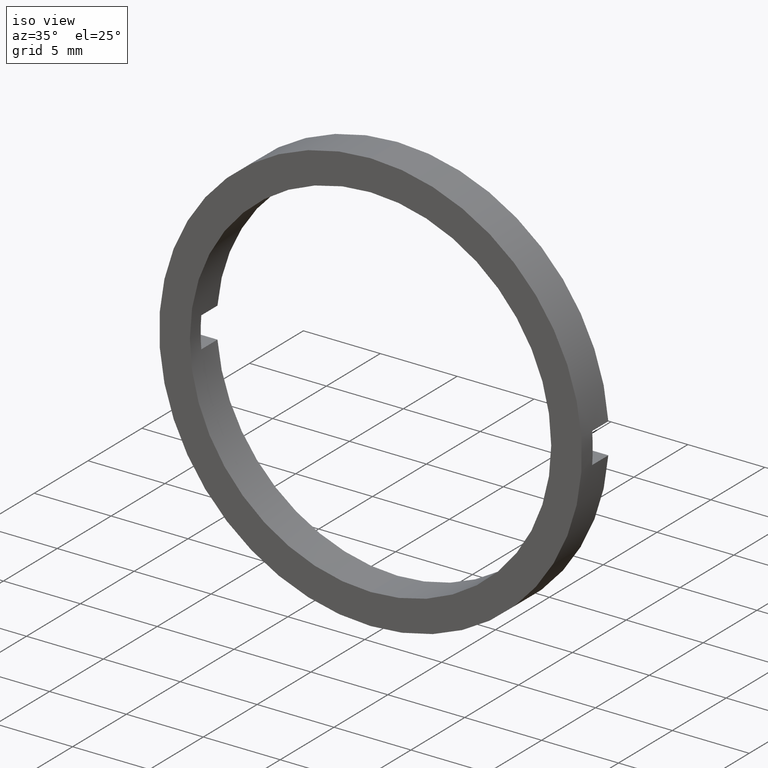
[diagram: clean part render]
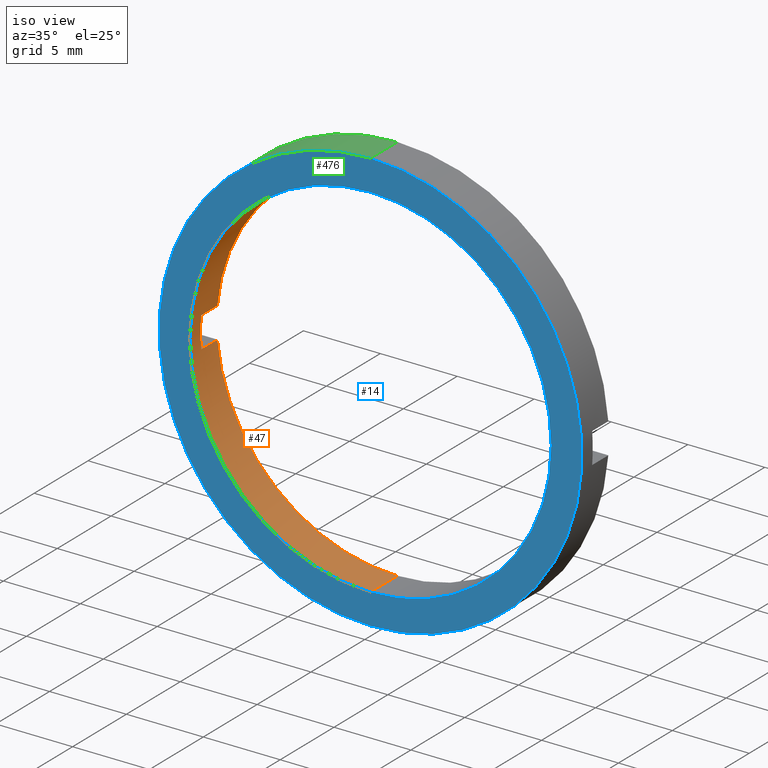
[diagram: same view with three faces highlighted in distinct colors, each labeled with its STEP entity id]
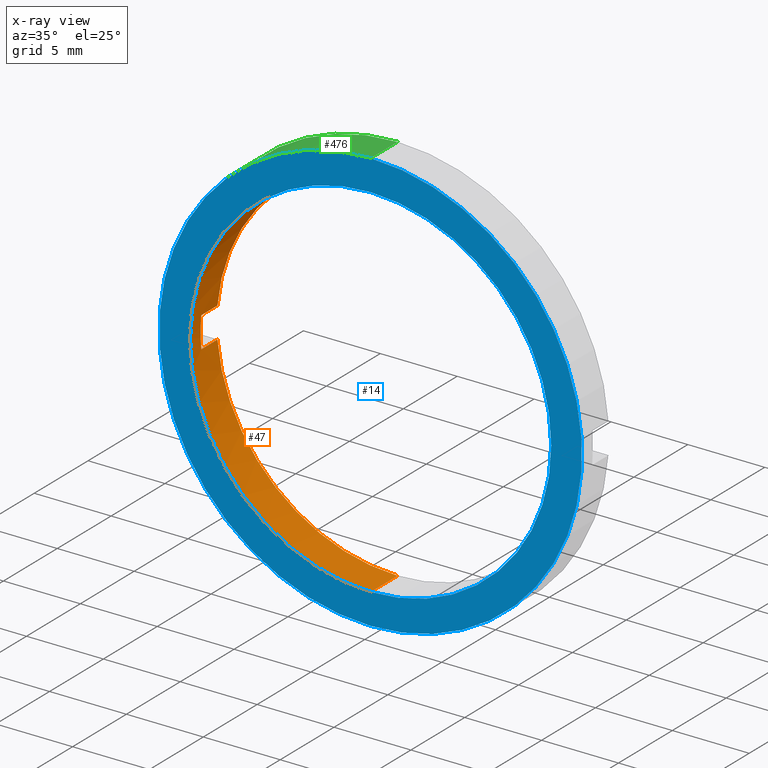
[diagram: x-ray of the same camera — body ghosted, the three highlighted faces saturated]
A machine part, iso view with three faces highlighted in distinct colors.
The next image is the same camera in x-ray (body ghosted, the three faces saturated) — at least one of them is partly hidden behind the body in this view.
Their STEP definitions:

[orange] entity #47 — the highlighted cylindrical surface (partial cylindrical patch) has radius 11.75 mm, axis along (-0, 1, -0).
#24 = EDGE_CURVE ( 'NONE', #268, #174, #299, .T. ) ;
#26 = ORIENTED_EDGE ( 'NONE', *, *, #154, .T. ) ;
#33 = VECTOR ( 'NONE', #339, 1000.000000000000000 ) ;
#34 = DIRECTION ( 'NONE',  ( -0.0000000000000000000, 1.000000000000000000, -0.0000000000000000000 ) ) ;
#36 = DIRECTION ( 'NONE',  ( 0.0000000000000000000, 0.0000000000000000000, 1.000000000000000000 ) ) ;
#44 = ORIENTED_EDGE ( 'NONE', *, *, #245, .F. ) ;
#45 = DIRECTION ( 'NONE',  ( -0.0000000000000000000, 1.000000000000000000, -0.0000000000000000000 ) ) ;
#47 = ADVANCED_FACE ( 'NONE', ( #438 ), #175, .F. ) ;
#64 = VERTEX_POINT ( 'NONE', #456 ) ;
#74 = LINE ( 'NONE', #378, #82 ) ;
#80 = CIRCLE ( 'NONE', #403, 11.75000000000000700 ) ;
#82 = VECTOR ( 'NONE', #269, 1000.000000000000000 ) ;
#85 = DIRECTION ( 'NONE',  ( 0.0000000000000000000, -1.000000000000000000, 0.0000000000000000000 ) ) ;
#93 = VERTEX_POINT ( 'NONE', #274 ) ;
#113 = CARTESIAN_POINT ( 'NONE',  ( 1.438959988998140900E-015, -1.964249787179434000, -11.75000000000000700 ) ) ;
#123 = CARTESIAN_POINT ( 'NONE',  ( 0.0000000000000000000, -1.964249787179434000, 0.0000000000000000000 ) ) ;
#136 = DIRECTION ( 'NONE',  ( 0.0000000000000000000, 0.0000000000000000000, 1.000000000000000000 ) ) ;
#140 = CARTESIAN_POINT ( 'NONE',  ( -11.70736947396810200, -1.964249787179434000, 0.9999999999999995600 ) ) ;
#142 = VECTOR ( 'NONE', #197, 1000.000000000000000 ) ;
#149 = DIRECTION ( 'NONE',  ( -0.0000000000000000000, -1.000000000000000000, -0.0000000000000000000 ) ) ;
#154 = EDGE_CURVE ( 'NONE', #354, #325, #74, .T. ) ;
#156 = ORIENTED_EDGE ( 'NONE', *, *, #232, .T. ) ;
#174 = VERTEX_POINT ( 'NONE', #140 ) ;
#175 = CYLINDRICAL_SURFACE ( 'NONE', #426, 11.75000000000000700 ) ;
#178 = CARTESIAN_POINT ( 'NONE',  ( -11.70736947396810400, 56.26084262701361600, 1.000000000000000000 ) ) ;
#180 = ORIENTED_EDGE ( 'NONE', *, *, #204, .F. ) ;
#191 = DIRECTION ( 'NONE',  ( -0.0000000000000000000, 1.000000000000000000, -0.0000000000000000000 ) ) ;
#197 = DIRECTION ( 'NONE',  ( -0.0000000000000000000, 1.000000000000000000, -0.0000000000000000000 ) ) ;
#199 = ORIENTED_EDGE ( 'NONE', *, *, #460, .T. ) ;
#204 = EDGE_CURVE ( 'NONE', #354, #284, #80, .T. ) ;
#205 = CARTESIAN_POINT ( 'NONE',  ( -11.70736947396810400, 56.26084262701361600, -1.000000000000000000 ) ) ;
#208 = ORIENTED_EDGE ( 'NONE', *, *, #24, .T. ) ;
#219 = CARTESIAN_POINT ( 'NONE',  ( 0.0000000000000000000, 56.26084262701361600, 0.0000000000000000000 ) ) ;
#232 = EDGE_CURVE ( 'NONE', #174, #64, #256, .T. ) ;
#240 = CIRCLE ( 'NONE', #366, 11.75000000000000700 ) ;
#241 = EDGE_CURVE ( 'NONE', #268, #93, #248, .T. ) ;
#245 = EDGE_CURVE ( 'NONE', #284, #64, #454, .T. ) ;
#248 = CIRCLE ( 'NONE', #282, 11.75000000000000700 ) ;
#255 = ORIENTED_EDGE ( 'NONE', *, *, #241, .F. ) ;
#256 = CIRCLE ( 'NONE', #257, 11.75000000000000700 ) ;
#257 = AXIS2_PLACEMENT_3D ( 'NONE', #424, #191, #462 ) ;
#268 = VERTEX_POINT ( 'NONE', #467 ) ;
#269 = DIRECTION ( 'NONE',  ( -0.0000000000000000000, 1.000000000000000000, -0.0000000000000000000 ) ) ;
#274 = CARTESIAN_POINT ( 'NONE',  ( -11.70736947396810200, -3.464249787179428400, -0.9999999999999995600 ) ) ;
#278 = CARTESIAN_POINT ( 'NONE',  ( 1.438959988998140900E-015, -4.464249787179428900, -11.75000000000000700 ) ) ;
#280 = CARTESIAN_POINT ( 'NONE',  ( 0.0000000000000000000, 56.26084262701361600, 11.75000000000000700 ) ) ;
#282 = AXIS2_PLACEMENT_3D ( 'NONE', #389, #149, #428 ) ;
#284 = VERTEX_POINT ( 'NONE', #393 ) ;
#286 = DIRECTION ( 'NONE',  ( 0.0000000000000000000, 0.0000000000000000000, 1.000000000000000000 ) ) ;
#299 = LINE ( 'NONE', #178, #33 ) ;
#325 = VERTEX_POINT ( 'NONE', #113 ) ;
#336 = VECTOR ( 'NONE', #85, 1000.000000000000000 ) ;
#339 = DIRECTION ( 'NONE',  ( -0.0000000000000000000, 1.000000000000000000, -0.0000000000000000000 ) ) ;
#354 = VERTEX_POINT ( 'NONE', #278 ) ;
#366 = AXIS2_PLACEMENT_3D ( 'NONE', #123, #45, #286 ) ;
#368 = ORIENTED_EDGE ( 'NONE', *, *, #370, .T. ) ;
#370 = EDGE_CURVE ( 'NONE', #474, #93, #409, .T. ) ;
#378 = CARTESIAN_POINT ( 'NONE',  ( 1.438959988998140900E-015, 56.26084262701361600, -11.75000000000000700 ) ) ;
#389 = CARTESIAN_POINT ( 'NONE',  ( 0.0000000000000000000, -3.464249787179428400, 0.0000000000000000000 ) ) ;
#393 = CARTESIAN_POINT ( 'NONE',  ( 0.0000000000000000000, -4.464249787179428900, 11.75000000000000700 ) ) ;
#403 = AXIS2_PLACEMENT_3D ( 'NONE', #422, #34, #36 ) ;
#409 = LINE ( 'NONE', #205, #336 ) ;
#422 = CARTESIAN_POINT ( 'NONE',  ( 0.0000000000000000000, -4.464249787179428900, 0.0000000000000000000 ) ) ;
#424 = CARTESIAN_POINT ( 'NONE',  ( 0.0000000000000000000, -1.964249787179434000, 0.0000000000000000000 ) ) ;
#426 = AXIS2_PLACEMENT_3D ( 'NONE', #219, #485, #136 ) ;
#428 = DIRECTION ( 'NONE',  ( 0.0000000000000000000, 0.0000000000000000000, 1.000000000000000000 ) ) ;
#438 = FACE_OUTER_BOUND ( 'NONE', #458, .T. ) ;
#454 = LINE ( 'NONE', #280, #142 ) ;
#456 = CARTESIAN_POINT ( 'NONE',  ( 0.0000000000000000000, -1.964249787179434000, 11.75000000000000700 ) ) ;
#458 = EDGE_LOOP ( 'NONE', ( #180, #26, #199, #368, #255, #208, #156, #44 ) ) ;
#460 = EDGE_CURVE ( 'NONE', #325, #474, #240, .T. ) ;
#462 = DIRECTION ( 'NONE',  ( 0.0000000000000000000, 0.0000000000000000000, 1.000000000000000000 ) ) ;
#467 = CARTESIAN_POINT ( 'NONE',  ( -11.70736947396810200, -3.464249787179428400, 0.9999999999999995600 ) ) ;
#469 = CARTESIAN_POINT ( 'NONE',  ( -11.70736947396810200, -1.964249787179434000, -0.9999999999999995600 ) ) ;
#474 = VERTEX_POINT ( 'NONE', #469 ) ;
#485 = DIRECTION ( 'NONE',  ( -0.0000000000000000000, 1.000000000000000000, -0.0000000000000000000 ) ) ;

[blue] entity #14 — the highlighted planar face has unit normal (-0, 1, 0).
#14 = ADVANCED_FACE ( 'NONE', ( #414, #249 ), #177, .F. ) ;
#28 = ORIENTED_EDGE ( 'NONE', *, *, #176, .T. ) ;
#32 = CIRCLE ( 'NONE', #92, 13.75000000000000700 ) ;
#34 = DIRECTION ( 'NONE',  ( -0.0000000000000000000, 1.000000000000000000, -0.0000000000000000000 ) ) ;
#36 = DIRECTION ( 'NONE',  ( 0.0000000000000000000, 0.0000000000000000000, 1.000000000000000000 ) ) ;
#40 = DIRECTION ( 'NONE',  ( -0.0000000000000000000, 1.000000000000000000, -0.0000000000000000000 ) ) ;
#41 = CARTESIAN_POINT ( 'NONE',  ( 0.0000000000000000000, -4.464249787179428900, 0.0000000000000000000 ) ) ;
#48 = CARTESIAN_POINT ( 'NONE',  ( 1.683889348827611600E-015, -4.464249787179428900, -13.75000000000000700 ) ) ;
#80 = CIRCLE ( 'NONE', #403, 11.75000000000000700 ) ;
#86 = AXIS2_PLACEMENT_3D ( 'NONE', #264, #491, #410 ) ;
#90 = CARTESIAN_POINT ( 'NONE',  ( 0.0000000000000000000, -4.464249787179428900, 0.0000000000000000000 ) ) ;
#92 = AXIS2_PLACEMENT_3D ( 'NONE', #41, #324, #322 ) ;
#97 = ORIENTED_EDGE ( 'NONE', *, *, #204, .T. ) ;
#127 = DIRECTION ( 'NONE',  ( -0.0000000000000000000, 1.000000000000000000, -0.0000000000000000000 ) ) ;
#176 = EDGE_CURVE ( 'NONE', #284, #354, #186, .T. ) ;
#177 = PLANE ( 'NONE',  #86 ) ;
#186 = CIRCLE ( 'NONE', #328, 11.75000000000000700 ) ;
#200 = ORIENTED_EDGE ( 'NONE', *, *, #490, .F. ) ;
#204 = EDGE_CURVE ( 'NONE', #354, #284, #80, .T. ) ;
#215 = VERTEX_POINT ( 'NONE', #353 ) ;
#228 = ORIENTED_EDGE ( 'NONE', *, *, #270, .F. ) ;
#249 = FACE_BOUND ( 'NONE', #493, .T. ) ;
#264 = CARTESIAN_POINT ( 'NONE',  ( 11.75000000000000700, -4.464249787179429800, 0.0000000000000000000 ) ) ;
#270 = EDGE_CURVE ( 'NONE', #215, #430, #32, .T. ) ;
#278 = CARTESIAN_POINT ( 'NONE',  ( 1.438959988998140900E-015, -4.464249787179428900, -11.75000000000000700 ) ) ;
#281 = CARTESIAN_POINT ( 'NONE',  ( 0.0000000000000000000, -4.464249787179428900, 0.0000000000000000000 ) ) ;
#284 = VERTEX_POINT ( 'NONE', #393 ) ;
#294 = AXIS2_PLACEMENT_3D ( 'NONE', #90, #127, #441 ) ;
#313 = CIRCLE ( 'NONE', #294, 13.75000000000000700 ) ;
#317 = DIRECTION ( 'NONE',  ( 0.0000000000000000000, 0.0000000000000000000, 1.000000000000000000 ) ) ;
#322 = DIRECTION ( 'NONE',  ( 0.0000000000000000000, 0.0000000000000000000, 1.000000000000000000 ) ) ;
#324 = DIRECTION ( 'NONE',  ( -0.0000000000000000000, 1.000000000000000000, -0.0000000000000000000 ) ) ;
#328 = AXIS2_PLACEMENT_3D ( 'NONE', #281, #40, #317 ) ;
#353 = CARTESIAN_POINT ( 'NONE',  ( 0.0000000000000000000, -4.464249787179428900, 13.75000000000000700 ) ) ;
#354 = VERTEX_POINT ( 'NONE', #278 ) ;
#393 = CARTESIAN_POINT ( 'NONE',  ( 0.0000000000000000000, -4.464249787179428900, 11.75000000000000700 ) ) ;
#403 = AXIS2_PLACEMENT_3D ( 'NONE', #422, #34, #36 ) ;
#410 = DIRECTION ( 'NONE',  ( 0.0000000000000000000, 0.0000000000000000000, 1.000000000000000000 ) ) ;
#414 = FACE_OUTER_BOUND ( 'NONE', #418, .T. ) ;
#418 = EDGE_LOOP ( 'NONE', ( #228, #200 ) ) ;
#422 = CARTESIAN_POINT ( 'NONE',  ( 0.0000000000000000000, -4.464249787179428900, 0.0000000000000000000 ) ) ;
#430 = VERTEX_POINT ( 'NONE', #48 ) ;
#441 = DIRECTION ( 'NONE',  ( 0.0000000000000000000, 0.0000000000000000000, 1.000000000000000000 ) ) ;
#490 = EDGE_CURVE ( 'NONE', #430, #215, #313, .T. ) ;
#491 = DIRECTION ( 'NONE',  ( -0.0000000000000000000, 1.000000000000000000, 0.0000000000000000000 ) ) ;
#493 = EDGE_LOOP ( 'NONE', ( #28, #97 ) ) ;

[green] entity #476 — the highlighted cylindrical surface (partial cylindrical patch) has radius 13.75 mm, axis along (-0, 1, -0).
#21 = ORIENTED_EDGE ( 'NONE', *, *, #213, .F. ) ;
#31 = ORIENTED_EDGE ( 'NONE', *, *, #277, .T. ) ;
#48 = CARTESIAN_POINT ( 'NONE',  ( 1.683889348827611600E-015, -4.464249787179428900, -13.75000000000000700 ) ) ;
#49 = CARTESIAN_POINT ( 'NONE',  ( -13.71358815190248300, -3.464249787179428400, 0.9999999999999995600 ) ) ;
#53 = VERTEX_POINT ( 'NONE', #95 ) ;
#68 = CARTESIAN_POINT ( 'NONE',  ( 0.0000000000000000000, -3.464249787179428400, 0.0000000000000000000 ) ) ;
#73 = CARTESIAN_POINT ( 'NONE',  ( 0.0000000000000000000, -1.964249787179434000, 13.75000000000000700 ) ) ;
#76 = DIRECTION ( 'NONE',  ( 0.0000000000000000000, 0.0000000000000000000, 1.000000000000000000 ) ) ;
#88 = VECTOR ( 'NONE', #304, 1000.000000000000000 ) ;
#90 = CARTESIAN_POINT ( 'NONE',  ( 0.0000000000000000000, -4.464249787179428900, 0.0000000000000000000 ) ) ;
#95 = CARTESIAN_POINT ( 'NONE',  ( -13.71358815190248800, -1.964249787179430900, 1.000000000000000000 ) ) ;
#99 = EDGE_CURVE ( 'NONE', #53, #209, #262, .T. ) ;
#100 = DIRECTION ( 'NONE',  ( -0.0000000000000000000, 1.000000000000000000, -0.0000000000000000000 ) ) ;
#102 = VECTOR ( 'NONE', #117, 1000.000000000000000 ) ;
#107 = CARTESIAN_POINT ( 'NONE',  ( 0.0000000000000000000, -1.964249787179434000, 0.0000000000000000000 ) ) ;
#114 = ORIENTED_EDGE ( 'NONE', *, *, #490, .T. ) ;
#117 = DIRECTION ( 'NONE',  ( -0.0000000000000000000, 1.000000000000000000, -0.0000000000000000000 ) ) ;
#118 = AXIS2_PLACEMENT_3D ( 'NONE', #145, #100, #452 ) ;
#126 = EDGE_CURVE ( 'NONE', #234, #350, #321, .T. ) ;
#127 = DIRECTION ( 'NONE',  ( -0.0000000000000000000, 1.000000000000000000, -0.0000000000000000000 ) ) ;
#129 = LINE ( 'NONE', #251, #102 ) ;
#144 = DIRECTION ( 'NONE',  ( 0.0000000000000000000, 1.000000000000000000, 0.0000000000000000000 ) ) ;
#145 = CARTESIAN_POINT ( 'NONE',  ( 0.0000000000000000000, -1.964249787179434000, 0.0000000000000000000 ) ) ;
#148 = DIRECTION ( 'NONE',  ( 0.0000000000000000000, -1.000000000000000000, 0.0000000000000000000 ) ) ;
#162 = EDGE_CURVE ( 'NONE', #215, #209, #506, .T. ) ;
#183 = EDGE_CURVE ( 'NONE', #53, #350, #261, .T. ) ;
#209 = VERTEX_POINT ( 'NONE', #73 ) ;
#210 = AXIS2_PLACEMENT_3D ( 'NONE', #477, #363, #443 ) ;
#213 = EDGE_CURVE ( 'NONE', #214, #473, #384, .T. ) ;
#214 = VERTEX_POINT ( 'NONE', #237 ) ;
#215 = VERTEX_POINT ( 'NONE', #353 ) ;
#224 = DIRECTION ( 'NONE',  ( 0.0000000000000000000, 0.0000000000000000000, 1.000000000000000000 ) ) ;
#234 = VERTEX_POINT ( 'NONE', #316 ) ;
#237 = CARTESIAN_POINT ( 'NONE',  ( 1.683889348827611600E-015, -1.964249787179434000, -13.75000000000000700 ) ) ;
#238 = AXIS2_PLACEMENT_3D ( 'NONE', #107, #312, #76 ) ;
#242 = ORIENTED_EDGE ( 'NONE', *, *, #445, .F. ) ;
#246 = DIRECTION ( 'NONE',  ( -0.0000000000000000000, 1.000000000000000000, -0.0000000000000000000 ) ) ;
#247 = CARTESIAN_POINT ( 'NONE',  ( -13.71358815190248800, -1.964249787179430900, -1.000000000000000000 ) ) ;
#251 = CARTESIAN_POINT ( 'NONE',  ( -13.71358815190248500, 56.26084262701361600, -1.000000000000000000 ) ) ;
#261 = LINE ( 'NONE', #427, #373 ) ;
#262 = CIRCLE ( 'NONE', #118, 13.75000000000000700 ) ;
#271 = EDGE_LOOP ( 'NONE', ( #242, #114, #464, #309, #297, #419, #31, #21 ) ) ;
#277 = EDGE_CURVE ( 'NONE', #234, #473, #129, .T. ) ;
#292 = VECTOR ( 'NONE', #246, 1000.000000000000000 ) ;
#294 = AXIS2_PLACEMENT_3D ( 'NONE', #90, #127, #441 ) ;
#297 = ORIENTED_EDGE ( 'NONE', *, *, #183, .T. ) ;
#304 = DIRECTION ( 'NONE',  ( -0.0000000000000000000, 1.000000000000000000, -0.0000000000000000000 ) ) ;
#309 = ORIENTED_EDGE ( 'NONE', *, *, #99, .F. ) ;
#312 = DIRECTION ( 'NONE',  ( -0.0000000000000000000, 1.000000000000000000, -0.0000000000000000000 ) ) ;
#313 = CIRCLE ( 'NONE', #294, 13.75000000000000700 ) ;
#316 = CARTESIAN_POINT ( 'NONE',  ( -13.71358815190248300, -3.464249787179428400, -0.9999999999999995600 ) ) ;
#321 = CIRCLE ( 'NONE', #323, 13.75000000000000700 ) ;
#323 = AXIS2_PLACEMENT_3D ( 'NONE', #68, #144, #224 ) ;
#344 = CARTESIAN_POINT ( 'NONE',  ( 0.0000000000000000000, 56.26084262701361600, 13.75000000000000700 ) ) ;
#350 = VERTEX_POINT ( 'NONE', #49 ) ;
#353 = CARTESIAN_POINT ( 'NONE',  ( 0.0000000000000000000, -4.464249787179428900, 13.75000000000000700 ) ) ;
#363 = DIRECTION ( 'NONE',  ( -0.0000000000000000000, 1.000000000000000000, -0.0000000000000000000 ) ) ;
#373 = VECTOR ( 'NONE', #148, 1000.000000000000000 ) ;
#384 = CIRCLE ( 'NONE', #238, 13.75000000000000700 ) ;
#399 = CYLINDRICAL_SURFACE ( 'NONE', #210, 13.75000000000000700 ) ;
#419 = ORIENTED_EDGE ( 'NONE', *, *, #126, .F. ) ;
#427 = CARTESIAN_POINT ( 'NONE',  ( -13.71358815190248500, 56.26084262701361600, 1.000000000000000000 ) ) ;
#429 = LINE ( 'NONE', #435, #292 ) ;
#430 = VERTEX_POINT ( 'NONE', #48 ) ;
#435 = CARTESIAN_POINT ( 'NONE',  ( 1.683889348827611600E-015, 56.26084262701361600, -13.75000000000000700 ) ) ;
#441 = DIRECTION ( 'NONE',  ( 0.0000000000000000000, 0.0000000000000000000, 1.000000000000000000 ) ) ;
#443 = DIRECTION ( 'NONE',  ( 0.0000000000000000000, 0.0000000000000000000, 1.000000000000000000 ) ) ;
#445 = EDGE_CURVE ( 'NONE', #430, #214, #429, .T. ) ;
#452 = DIRECTION ( 'NONE',  ( 0.0000000000000000000, 0.0000000000000000000, 1.000000000000000000 ) ) ;
#464 = ORIENTED_EDGE ( 'NONE', *, *, #162, .T. ) ;
#473 = VERTEX_POINT ( 'NONE', #247 ) ;
#476 = ADVANCED_FACE ( 'NONE', ( #492 ), #399, .T. ) ;
#477 = CARTESIAN_POINT ( 'NONE',  ( 0.0000000000000000000, 56.26084262701361600, 0.0000000000000000000 ) ) ;
#490 = EDGE_CURVE ( 'NONE', #430, #215, #313, .T. ) ;
#492 = FACE_OUTER_BOUND ( 'NONE', #271, .T. ) ;
#506 = LINE ( 'NONE', #344, #88 ) ;